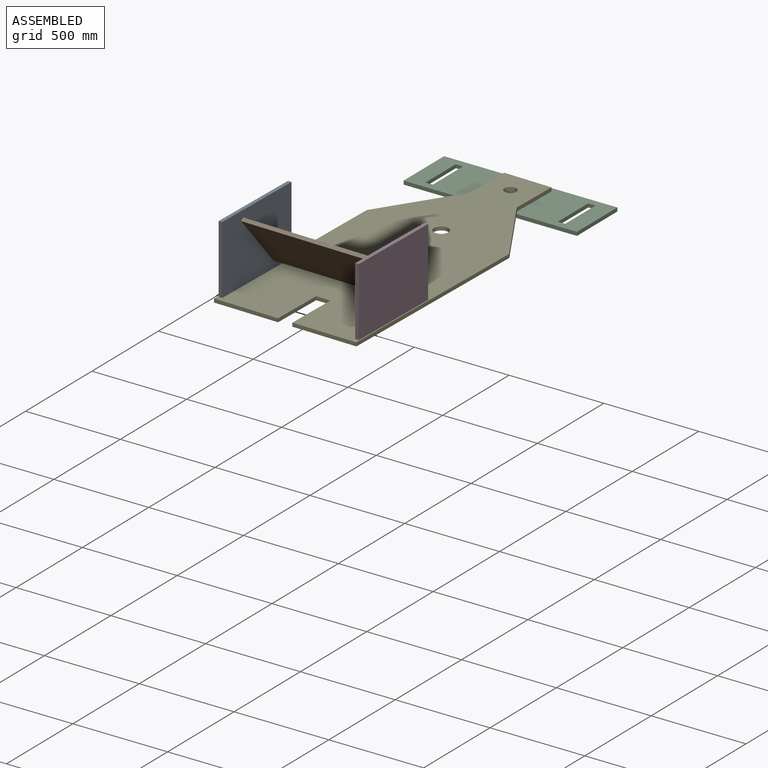
[diagram: assembled view]
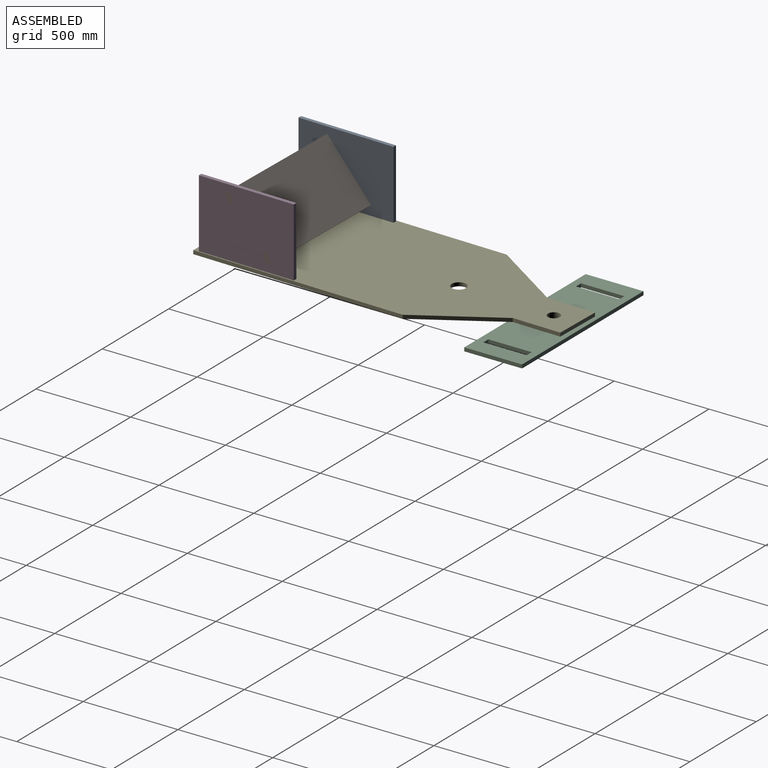
[diagram: assembled view, second angle]
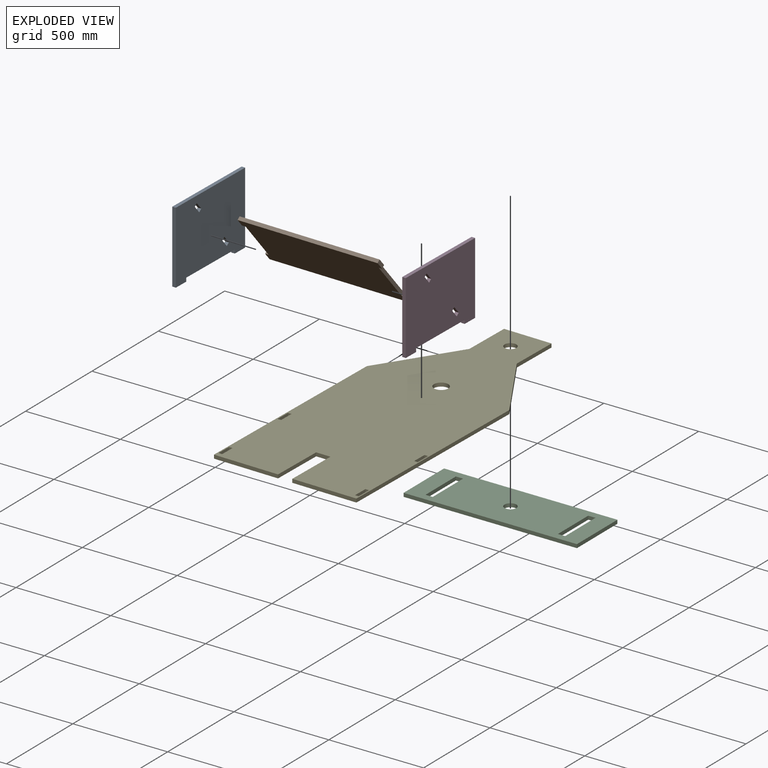
[diagram: exploded view]
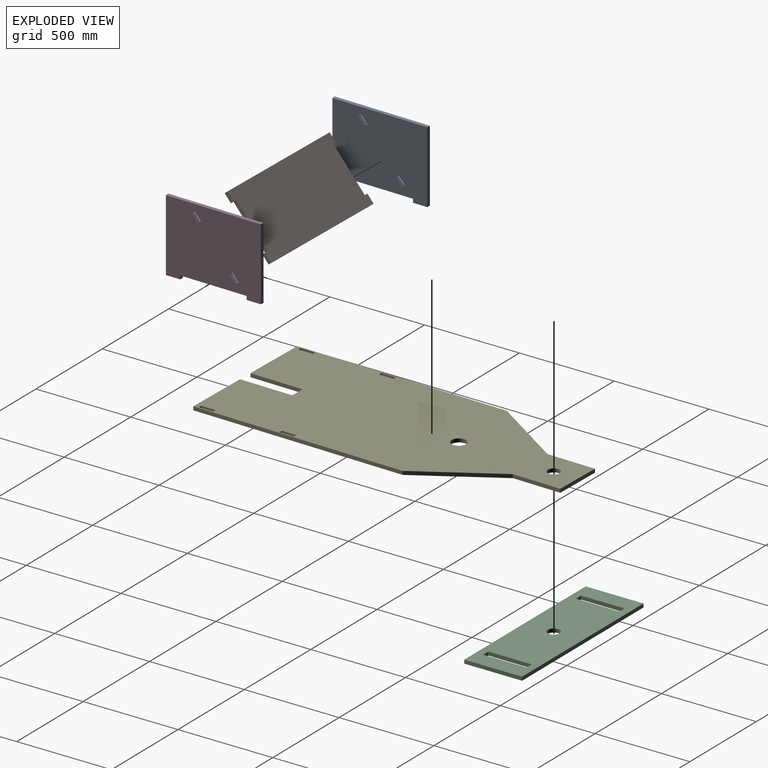
[diagram: exploded view, second angle]
ASSEMBLY  parts=5 mates=4
PART A: 18 faces, bbox 508x19.1x381 mm
  f0: plane 19.05x14.49mm, normal (0.65,0,0.76), area 362.9mm2, adj f1,f15,f16,f17
  f1: plane 38.65x32.97mm, normal (0.76,0,-0.65), area 967.7mm2, adj f0,f2,f16,f17
  f2: plane 19.05x14.49mm, normal (-0.65,0,-0.76), area 362.9mm2, adj f1,f15,f16,f17
  f3: plane 38.65x32.97mm, normal (0.76,0,-0.65), area 967.7mm2, adj f4,f13,f16,f17
  f4: plane 19.05x14.49mm, normal (-0.65,0,-0.76), area 362.9mm2, adj f3,f5,f16,f17
  f5: plane 38.65x32.97mm, normal (-0.76,0,0.65), area 967.7mm2, adj f4,f13,f16,f17
  f6: plane 19.05x19.05mm, normal (1,0,0), area 362.9mm2, adj f7,f14,f16,f17
  f7: plane 355.6x19.05mm, normal (0,0,-1), area 6774.2mm2, adj f6,f8,f16,f17
  f8: plane 19.05x19.05mm, normal (-1,0,0), area 362.9mm2, adj f7,f9,f16,f17
  f9: plane 76.2x19.05mm, normal (0,0,-1), area 1451.6mm2, adj f8,f10,f16,f17
  f10: plane 381x19.05mm, normal (1,0,0), area 7258mm2, adj f9,f11,f16,f17
  f11: plane 508x19.05mm, normal (0,0,1), area 9677.4mm2, adj f10,f12,f16,f17
  f12: plane 381x19.05mm, normal (-1,0,0), area 7258mm2, adj f11,f14,f16,f17
  f13: plane 19.05x14.49mm, normal (0.65,0,0.76), area 362.9mm2, adj f3,f5,f16,f17
  f14: plane 76.2x19.05mm, normal (0,0,-1), area 1451.6mm2, adj f6,f12,f16,f17
  f15: plane 38.65x32.97mm, normal (-0.76,0,0.65), area 967.7mm2, adj f0,f2,f16,f17
  f16: plane 508x381mm, normal (0,-1,0), area 184838.3mm2, adj f0,f1,f2,f3,f4,f5,f6,f7
  f17: plane 508x381mm, normal (0,1,0), area 184838.3mm2, adj f0,f1,f2,f3,f4,f5,f6,f7
PART B: 14 faces, bbox 749.3x19.1x362 mm
  f0: plane 19.05x19.05mm, normal (0,0,-1), area 362.9mm2, adj f1,f11,f12,f13
  f1: plane 260.35x19.05mm, normal (-1,0,0), area 4959.7mm2, adj f0,f2,f12,f13
  f2: plane 19.05x19.05mm, normal (0,0,1), area 362.9mm2, adj f1,f3,f12,f13
  f3: plane 50.8x19.05mm, normal (-1,0,0), area 967.7mm2, adj f2,f4,f12,f13
  f4: plane 749.3x19.05mm, normal (0,0,-1), area 14274.2mm2, adj f3,f5,f12,f13
  f5: plane 50.8x19.05mm, normal (1,0,0), area 967.7mm2, adj f4,f6,f12,f13
  f6: plane 19.05x19.05mm, normal (0,0,1), area 362.9mm2, adj f5,f7,f12,f13
  f7: plane 260.35x19.05mm, normal (1,0,0), area 4959.7mm2, adj f6,f8,f12,f13
  f8: plane 19.05x19.05mm, normal (0,0,-1), area 362.9mm2, adj f7,f9,f12,f13
  f9: plane 50.8x19.05mm, normal (1,0,0), area 967.7mm2, adj f8,f10,f12,f13
  f10: plane 749.3x19.05mm, normal (0,0,1), area 14274.2mm2, adj f9,f11,f12,f13
  f11: plane 50.8x19.05mm, normal (-1,0,0), area 967.7mm2, adj f0,f10,f12,f13
  f12: plane 749.3x361.95mm, normal (0,-1,0), area 261289.8mm2, adj f0,f1,f2,f3,f4,f5,f6,f7
  f13: plane 749.3x361.95mm, normal (0,1,0), area 261289.8mm2, adj f0,f1,f2,f3,f4,f5,f6,f7
PART C: 15 faces, bbox 914.4x304.8x19.1 mm
  f0: plane 914.4x19.05mm, normal (0,1,0), area 17419.3mm2, adj f1,f12,f13,f14
  f1: plane 304.8x19.05mm, normal (-1,0,0), area 5806.4mm2, adj f0,f2,f13,f14
  f2: plane 914.4x19.05mm, normal (0,-1,0), area 17419.3mm2, adj f1,f12,f13,f14
  f3: plane 228.6x19.05mm, normal (1,0,0), area 4354.8mm2, adj f4,f9,f13,f14
  f4: plane 38.1x19.05mm, normal (0,-1,0), area 725.8mm2, adj f3,f5,f13,f14
  f5: plane 228.6x19.05mm, normal (-1,0,0), area 4354.8mm2, adj f4,f9,f13,f14
  f6: plane 228.6x19.05mm, normal (1,0,0), area 4354.8mm2, adj f7,f10,f13,f14
  f7: plane 38.1x19.05mm, normal (0,-1,0), area 725.8mm2, adj f6,f8,f13,f14
  f8: plane 228.6x19.05mm, normal (-1,0,0), area 4354.8mm2, adj f7,f10,f13,f14
  f9: plane 38.1x19.05mm, normal (0,1,0), area 725.8mm2, adj f3,f5,f13,f14
  f10: plane 38.1x19.05mm, normal (0,1,0), area 725.8mm2, adj f6,f8,f13,f14
  f11: cylinder r=31.31mm len=62.61mm, axis (0,0,-1), area 3747.1mm2, adj f13,f14
  f12: plane 304.8x19.05mm, normal (1,0,0), area 5806.4mm2, adj f0,f2,f13,f14
  f13: plane 914.4x304.8mm, normal (0,0,1), area 258210.9mm2, adj f0,f1,f2,f3,f4,f5,f6,f7
  f14: plane 914.4x304.8mm, normal (0,0,-1), area 258210.9mm2, adj f0,f1,f2,f3,f4,f5,f6,f7
PART D: same geometry as A
PART E: 32 faces, bbox 762x1778x19.1 mm
  f0: plane 19.05x19.05mm, normal (0,-1,0), area 362.9mm2, adj f1,f29,f30,f31
  f1: plane 76.2x19.05mm, normal (-1,0,0), area 1451.6mm2, adj f0,f2,f30,f31
  f2: plane 19.05x19.05mm, normal (0,1,0), area 362.9mm2, adj f1,f29,f30,f31
  f3: plane 76.2x19.05mm, normal (1,0,0), area 1451.6mm2, adj f4,f23,f30,f31
  f4: plane 19.05x19.05mm, normal (0,-1,0), area 362.9mm2, adj f3,f5,f30,f31
  f5: plane 76.2x19.05mm, normal (-1,0,0), area 1451.6mm2, adj f4,f23,f30,f31
  f6: plane 76.2x19.05mm, normal (0,-1,0), area 1451.6mm2, adj f7,f26,f30,f31
  f7: plane 279.4x19.05mm, normal (-1,0,0), area 5322.6mm2, adj f6,f8,f30,f31
  f8: plane 342.9x19.05mm, normal (0,-1,0), area 6532.2mm2, adj f7,f9,f30,f31
  f9: plane 1120.19x19.05mm, normal (1,0,0), area 21339.7mm2, adj f8,f10,f30,f31
  f10: plane 403.81x254mm, normal (0.85,0.53,0), area 9087.8mm2, adj f9,f11,f30,f31
  f11: plane 254x19.05mm, normal (1,0,0), area 4838.7mm2, adj f10,f12,f30,f31
  f12: plane 254x19.05mm, normal (0,1,0), area 4838.7mm2, adj f11,f13,f30,f31
  f13: plane 254x19.05mm, normal (-1,0,0), area 4838.7mm2, adj f12,f14,f30,f31
  f14: plane 403.81x254mm, normal (-0.85,0.53,0), area 9087.8mm2, adj f13,f15,f30,f31
  f15: plane 1120.19x19.05mm, normal (-1,0,0), area 21339.7mm2, adj f14,f16,f30,f31
  f16: plane 342.9x19.05mm, normal (0,-1,0), area 6532.2mm2, adj f15,f26,f30,f31
  f17: plane 76.2x19.05mm, normal (1,0,0), area 1451.6mm2, adj f18,f27,f30,f31
  f18: plane 19.05x18.71mm, normal (0,-1,0), area 356.4mm2, adj f17,f19,f30,f31
  f19: plane 76.2x19.05mm, normal (-1,0,0), area 1451.6mm2, adj f18,f27,f30,f31
  f20: plane 76.2x19.05mm, normal (-1,0,0), area 1451.6mm2, adj f21,f28,f30,f31
  f21: plane 19.05x19.05mm, normal (0,1,0), area 362.9mm2, adj f20,f22,f30,f31
  f22: plane 76.2x19.05mm, normal (1,0,0), area 1451.6mm2, adj f21,f28,f30,f31
  f23: plane 19.05x19.05mm, normal (0,1,0), area 362.9mm2, adj f3,f5,f30,f31
  f24: cylinder r=38.1mm len=76.2mm, axis (0,0,-1), area 4560.4mm2, adj f30,f31
  f25: cylinder r=31.31mm len=62.61mm, axis (0,0,-1), area 3747.3mm2, adj f30,f31
  f26: plane 279.4x19.05mm, normal (1,0,0), area 5322.6mm2, adj f6,f16,f30,f31
  f27: plane 19.05x18.71mm, normal (0,1,0), area 356.4mm2, adj f17,f19,f30,f31
  f28: plane 19.05x19.05mm, normal (0,-1,0), area 362.9mm2, adj f20,f22,f30,f31
  f29: plane 76.2x19.05mm, normal (1,0,0), area 1451.6mm2, adj f0,f2,f30,f31
  f30: plane 1778x762mm, normal (0,0,1), area 1088526.4mm2, adj f0,f1,f2,f3,f4,f5,f6,f7
  f31: plane 1778x762mm, normal (0,0,-1), area 1088526.4mm2, adj f0,f1,f2,f3,f4,f5,f6,f7
PLACE A rot(axis=(0,0,-1),91.1deg) t=(-1046.17,-1520.43,-625.02)mm
PLACE B rot(axis=(0,-0.35,0.94),178.9deg) t=(-1063.9,-1453.22,-656.2)mm
PLACE C rot(axis=(0,1,0),180deg) t=(-672.1,-68.1,-744.86)mm
PLACE D rot(axis=(0,0,-1),91.1deg) t=(-316.06,-1534.84,-624.99)mm
PLACE E rot(axis=(0,0,-1),1.1deg) t=(-216.96,-1008.62,-744.85)mm
MATE fastened D.f17 <-> E.f5  axis (1,-0.02,0) through (-311.57,-1307.19,-744.85)mm
MATE revolute C.f11 <-> E.f25  axis (0,0,1) through (-664.42,-182.4,-744.86)mm
MATE fastened B.f13 <-> D.f15  axis (-0.01,-0.76,-0.65) through (-318.87,-1676.63,-411.55)mm
MATE fastened A.f16 <-> E.f17  axis (-1,0.02,0) through (-1060.72,-1292.4,-744.88)mm
